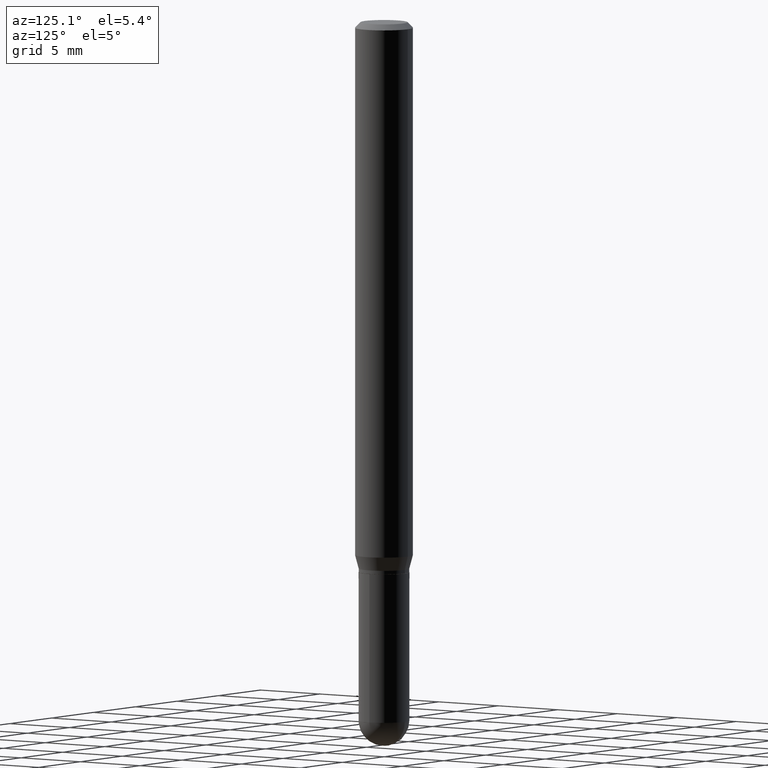
[diagram: clean part render]
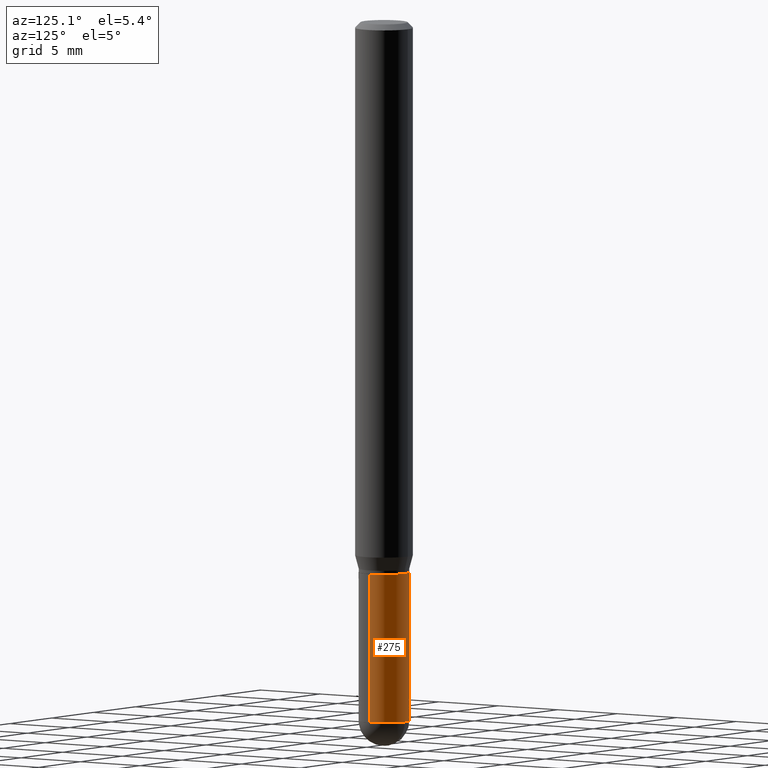
[diagram: same view with one face highlighted and labeled with its STEP entity id]
A machine part, auxiliary view. The second image highlights one B-rep face of the part: STEP entity #275.
In plain terms, the highlighted cylindrical surface (edge-blend (fillet) strip) has radius 1.7501 mm, axis along (-0, 0, 1).
Its self-contained STEP definition (entity closure, byte-faithful):
#14 = VECTOR ( 'NONE', #312, 39.37007874015748143 ) ;
#17 = DIRECTION ( 'NONE',  ( 1.000000000000000000, -6.982962677686273021E-15, 0.000000000000000000 ) ) ;
#20 = VECTOR ( 'NONE', #486, 39.37007874015748143 ) ;
#28 = CARTESIAN_POINT ( 'NONE',  ( 4.645412544229285965E-29, -6.632417951266439838E-15, -1.899600000000000177 ) ) ;
#30 = VERTEX_POINT ( 'NONE', #32 ) ;
#32 = CARTESIAN_POINT ( 'NONE',  ( 0.06890000000000008618, -6.409137719647418882E-15, -1.899600000000000177 ) ) ;
#35 = ORIENTED_EDGE ( 'NONE', *, *, #189, .F. ) ;
#55 = LINE ( 'NONE', #148, #14 ) ;
#59 = AXIS2_PLACEMENT_3D ( 'NONE', #28, #354, #114 ) ;
#78 = ORIENTED_EDGE ( 'NONE', *, *, #86, .T. ) ;
#86 = EDGE_CURVE ( 'NONE', #229, #327, #317, .T. ) ;
#92 = CARTESIAN_POINT ( 'NONE',  ( -0.06890000000000008618, -5.438447646216124813E-15, -1.899600000000000177 ) ) ;
#96 = CARTESIAN_POINT ( 'NONE',  ( 4.645412544229285965E-29, -6.632417951266439838E-15, -1.899600000000000177 ) ) ;
#109 = EDGE_LOOP ( 'NONE', ( #195, #78, #188, #35, #331 ) ) ;
#114 = DIRECTION ( 'NONE',  ( 1.000000000000000000, -6.982962677686273021E-15, 0.000000000000000000 ) ) ;
#122 = VERTEX_POINT ( 'NONE', #395 ) ;
#148 = CARTESIAN_POINT ( 'NONE',  ( 0.06890000000000007230, -4.811261284925842315E-16, 3.359685798523402771E-30 ) ) ;
#158 = AXIS2_PLACEMENT_3D ( 'NONE', #347, #454, #17 ) ;
#188 = ORIENTED_EDGE ( 'NONE', *, *, #277, .F. ) ;
#189 = EDGE_CURVE ( 'NONE', #30, #122, #55, .T. ) ;
#195 = ORIENTED_EDGE ( 'NONE', *, *, #231, .T. ) ;
#225 = DIRECTION ( 'NONE',  ( 1.000000000000000000, -6.982962677686273021E-15, 0.000000000000000000 ) ) ;
#226 = CARTESIAN_POINT ( 'NONE',  ( -0.06890000000000007230, 4.895639449387095418E-16, -3.389146277185633520E-30 ) ) ;
#229 = VERTEX_POINT ( 'NONE', #92 ) ;
#231 = EDGE_CURVE ( 'NONE', #325, #229, #343, .T. ) ;
#262 = DIRECTION ( 'NONE',  ( -2.445468806185136597E-29, 3.491481338843145583E-15, 1.000000000000000000 ) ) ;
#273 = FACE_OUTER_BOUND ( 'NONE', #109, .T. ) ;
#275 = ADVANCED_FACE ( 'NONE', ( #273 ), #341, .T. ) ;
#277 = EDGE_CURVE ( 'NONE', #122, #327, #390, .T. ) ;
#285 = EDGE_CURVE ( 'NONE', #30, #325, #448, .T. ) ;
#298 = CARTESIAN_POINT ( 'NONE',  ( 0.000000000000000000, 0.000000000000000000, 0.000000000000000000 ) ) ;
#312 = DIRECTION ( 'NONE',  ( -2.445468806185136877E-29, 3.491481338843145188E-15, 1.000000000000000000 ) ) ;
#317 = LINE ( 'NONE', #226, #20 ) ;
#325 = VERTEX_POINT ( 'NONE', #455 ) ;
#327 = VERTEX_POINT ( 'NONE', #348 ) ;
#331 = ORIENTED_EDGE ( 'NONE', *, *, #285, .T. ) ;
#341 = CYLINDRICAL_SURFACE ( 'NONE', #378, 0.06890000000000007230 ) ;
#343 = CIRCLE ( 'NONE', #59, 0.06890000000000007230 ) ;
#347 = CARTESIAN_POINT ( 'NONE',  ( 3.658665880933582389E-29, -5.223605231043229660E-15, -1.496099999999999985 ) ) ;
#348 = CARTESIAN_POINT ( 'NONE',  ( -0.06890000000000007230, -5.438447646216124813E-15, -1.496099999999999985 ) ) ;
#354 = DIRECTION ( 'NONE',  ( -2.445468806185136597E-29, 3.491481338843145583E-15, 1.000000000000000000 ) ) ;
#378 = AXIS2_PLACEMENT_3D ( 'NONE', #298, #487, #385 ) ;
#385 = DIRECTION ( 'NONE',  ( 1.000000000000000000, -6.982962677686265922E-15, 4.876176775795935232E-29 ) ) ;
#390 = CIRCLE ( 'NONE', #158, 0.06890000000000007230 ) ;
#395 = CARTESIAN_POINT ( 'NONE',  ( 0.06890000000000007230, -5.704731359535814187E-15, -1.496099999999999985 ) ) ;
#442 = AXIS2_PLACEMENT_3D ( 'NONE', #96, #262, #225 ) ;
#448 = CIRCLE ( 'NONE', #442, 0.06890000000000007230 ) ;
#454 = DIRECTION ( 'NONE',  ( -2.445468806185136597E-29, 3.491481338843145583E-15, 1.000000000000000000 ) ) ;
#455 = CARTESIAN_POINT ( 'NONE',  ( 4.811261284926304785E-16, 0.06889999999999341096, -1.899600000000000399 ) ) ;
#486 = DIRECTION ( 'NONE',  ( -2.445468806185136877E-29, 3.491481338843145188E-15, 1.000000000000000000 ) ) ;
#487 = DIRECTION ( 'NONE',  ( -2.445468806185136597E-29, 3.491481338843145583E-15, 1.000000000000000000 ) ) ;